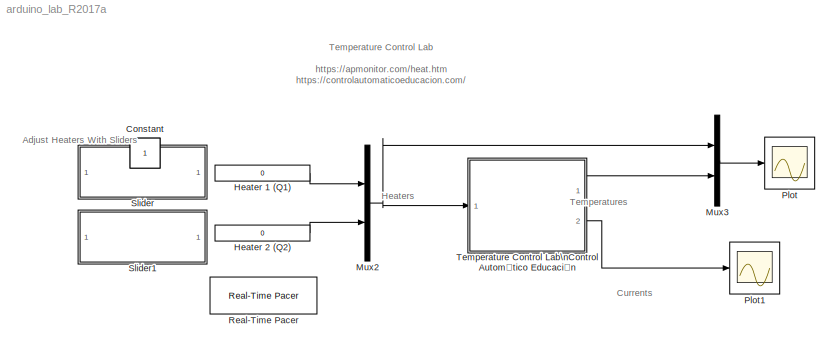
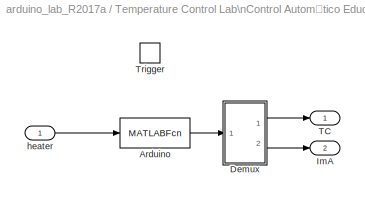
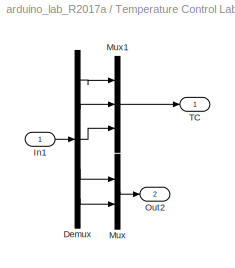
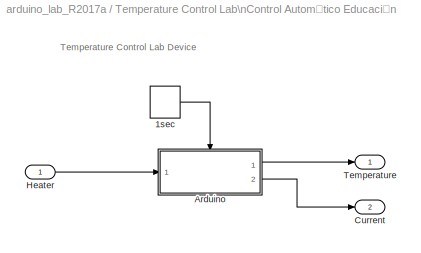
MODEL arduino_lab_R2017a
KIND model
CONFIG StartFcn = clear all
BLOCK [Constant] 1
  IOType = siggen
  SID = 41
BLOCK [Constant] Constant
  IOType = siggen
  SID = 44
BLOCK [Constant] Heater 1 (Q1)
  SID = 67
  Value = 0
BLOCK [Constant] Heater 2 (Q2)
  SID = 68
  Value = 0
BLOCK [Mux] Mux2
  DisplayOption = bar
  Inputs = 2
  Ports = [2, 1]
  SID = 64
BLOCK [Mux] Mux3
  DisplayOption = bar
  Inputs = 2
  Ports = [2, 1]
  SID = 87
BLOCK [Scope] Plot
  Floating = off
  NumInputPorts = 1
  Ports = [1]
  SID = 56
  ScopeSpecificationString = Simulink.scopes.TimeScopeBlockCfg('CurrentConfiguration', extmgr.ConfigurationSet(extmgr.Configuration('Core','General UI',true),extmgr.Configuration('Core','Source UI',true),extmgr.Configuration('Sources','WiredSimulink',true,'DataLoggingLimitDataPoints',true,'DataLoggingSaveFormat','Array','DataLoggingDecimation','1','DataLoggingDecimateData',true),extmgr.Configuration('Visuals','Time Domain',tr...<+1911ch>
BLOCK [Scope] Plot1
  Floating = off
  NumInputPorts = 1
  Ports = [1]
  SID = 101
  ScopeSpecificationString = Simulink.scopes.TimeScopeBlockCfg('CurrentConfiguration', extmgr.ConfigurationSet(extmgr.Configuration('Core','General UI',true),extmgr.Configuration('Core','Source UI',true),extmgr.Configuration('Sources','WiredSimulink',true,'DataLoggingLimitDataPoints',true,'DataLoggingSaveFormat','Array','DataLoggingDecimation','1','DataLoggingDecimateData',true,'DataLoggingVariableName','ScopeData1'),extmgr.C...<+1859ch>
BLOCK [Reference] Real-Time Pacer  REF=realtime_pacer_lib/Real-Time Pacer
  Ports = []
  SID = 23
  SourceBlock = realtime_pacer_lib/Real-Time Pacer
  SourceType = RealTime_Pacer
  simTimePerRealTime = 1
BLOCK [SubSystem] Slider
  DialogController = hmiCreateDDGDialog
  DialogControllerArgs = DataTag0
  IsWebBlock = on
  Ports = []
  RequestExecContextInheritance = off
  SID = 110
BLOCK [SubSystem] Slider1
  DialogController = hmiCreateDDGDialog
  DialogControllerArgs = DataTag1
  IsWebBlock = on
  Ports = []
  RequestExecContextInheritance = off
  SID = 111
BLOCK [SubSystem] Temperature Control Lab\nControl Automático Educación
  Ports = [1, 2]
  RequestExecContextInheritance = off
  SID = 30
BLOCK [DiscretePulseGenerator] Temperature Control Lab\nControl Automático Educación/1sec
  Period = 1
  Ports = [0, 1]
  PulseType = Time based
  PulseWidth = 50
  SID = 32
BLOCK [SubSystem] Temperature Control Lab\nControl Automático Educación/Arduino
  Ports = [1, 2, 0, 1]
  RequestExecContextInheritance = off
  SID = 33
  TreatAsAtomicUnit = on
BLOCK [MATLABFcn] Temperature Control Lab\nControl Automático Educación/Arduino/Arduino
  MATLABFcn = arduino_tclab
  Ports = [1, 1]
  SID = 36
BLOCK [SubSystem] Temperature Control Lab\nControl Automático Educación/Arduino/Demux
  Ports = [1, 2]
  RequestExecContextInheritance = off
  SID = 106
BLOCK [Demux] Temperature Control Lab\nControl Automático Educación/Arduino/Demux/Demux
  Outputs = 5
  Ports = [1, 5]
  SID = 103
BLOCK [Inport] Temperature Control Lab\nControl Automático Educación/Arduino/Demux/In1
  SID = 107
BLOCK [Mux] Temperature Control Lab\nControl Automático Educación/Arduino/Demux/Mux
  DisplayOption = bar
  Inputs = 2
  Ports = [2, 1]
  SID = 104
BLOCK [Mux] Temperature Control Lab\nControl Automático Educación/Arduino/Demux/Mux1
  DisplayOption = bar
  Inputs = 3
  Ports = [3, 1]
  SID = 105
BLOCK [Outport] Temperature Control Lab\nControl Automático Educación/Arduino/Demux/Out2
  Port = 2
  SID = 109
BLOCK [Outport] Temperature Control Lab\nControl Automático Educación/Arduino/Demux/TC
  SID = 108
BLOCK [Outport] Temperature Control Lab\nControl Automático Educación/Arduino/ImA
  InitialOutput = [0 0]
  Port = 2
  SID = 98
BLOCK [Outport] Temperature Control Lab\nControl Automático Educación/Arduino/TC
  InitialOutput = [25 25 25]
  SID = 37
BLOCK [TriggerPort] Temperature Control Lab\nControl Automático Educación/Arduino/Trigger
  Ports = []
  SID = 35
  StatesWhenEnabling = held
  VariantControl = Variant
BLOCK [Inport] Temperature Control Lab\nControl Automático Educación/Arduino/heater
  LatchByDelayingOutsideSignal = on
  SID = 34
BLOCK [Outport] Temperature Control Lab\nControl Automático Educación/Current
  Port = 2
  SID = 99
BLOCK [Inport] Temperature Control Lab\nControl Automático Educación/Heater
  SID = 31
BLOCK [Outport] Temperature Control Lab\nControl Automático Educación/Temperature
  SID = 38
ANNOTATION (root): \n \n Currents
ANNOTATION (root): \n \n Temperature Control Lab \n https://apmonitor.com/heat.htm https://controlautomaticoeducacion.com/
ANNOTATION (root): \n \n Adjust Heaters With Sliders
ANNOTATION (root): \n \n Heaters
ANNOTATION (root): \n \n Temperatures
ANNOTATION Temperature Control Lab\nControl Automático Educación: Temperature Control Lab Device
LINE Heater 1 (Q1):1 -> Mux2:1
LINE Heater 2 (Q2):1 -> Mux2:2
NET Mux2:1 -> Mux3:1, Temperature Control Lab\nControl Automático Educación:1
LINE Mux3:1 -> Plot:1
LINE Temperature Control Lab\nControl Automático Educación/1sec:1 -> Temperature Control Lab\nControl Automático Educación/Arduino:trigger
LINE Temperature Control Lab\nControl Automático Educación/Arduino/Arduino:1 -> Temperature Control Lab\nControl Automático Educación/Arduino/Demux:1
LINE Temperature Control Lab\nControl Automático Educación/Arduino/Demux/Demux:1 -> Temperature Control Lab\nControl Automático Educación/Arduino/Demux/Mux1:1
LINE Temperature Control Lab\nControl Automático Educación/Arduino/Demux/Demux:2 -> Temperature Control Lab\nControl Automático Educación/Arduino/Demux/Mux1:2
LINE Temperature Control Lab\nControl Automático Educación/Arduino/Demux/Demux:3 -> Temperature Control Lab\nControl Automático Educación/Arduino/Demux/Mux1:3
LINE Temperature Control Lab\nControl Automático Educación/Arduino/Demux/Demux:4 -> Temperature Control Lab\nControl Automático Educación/Arduino/Demux/Mux:1
LINE Temperature Control Lab\nControl Automático Educación/Arduino/Demux/Demux:5 -> Temperature Control Lab\nControl Automático Educación/Arduino/Demux/Mux:2
LINE Temperature Control Lab\nControl Automático Educación/Arduino/Demux/In1:1 -> Temperature Control Lab\nControl Automático Educación/Arduino/Demux/Demux:1
LINE Temperature Control Lab\nControl Automático Educación/Arduino/Demux/Mux1:1 -> Temperature Control Lab\nControl Automático Educación/Arduino/Demux/TC:1
LINE Temperature Control Lab\nControl Automático Educación/Arduino/Demux/Mux:1 -> Temperature Control Lab\nControl Automático Educación/Arduino/Demux/Out2:1
LINE Temperature Control Lab\nControl Automático Educación/Arduino/Demux:1 -> Temperature Control Lab\nControl Automático Educación/Arduino/TC:1
LINE Temperature Control Lab\nControl Automático Educación/Arduino/Demux:2 -> Temperature Control Lab\nControl Automático Educación/Arduino/ImA:1
LINE Temperature Control Lab\nControl Automático Educación/Arduino/heater:1 -> Temperature Control Lab\nControl Automático Educación/Arduino/Arduino:1
LINE Temperature Control Lab\nControl Automático Educación/Arduino:1 -> Temperature Control Lab\nControl Automático Educación/Temperature:1
LINE Temperature Control Lab\nControl Automático Educación/Arduino:2 -> Temperature Control Lab\nControl Automático Educación/Current:1
LINE Temperature Control Lab\nControl Automático Educación/Heater:1 -> Temperature Control Lab\nControl Automático Educación/Arduino:1
LINE Temperature Control Lab\nControl Automático Educación:1 -> Mux3:2
LINE Temperature Control Lab\nControl Automático Educación:2 -> Plot1:1
note: NET lines group one-source signal fan-out (src -> all destinations, sorted); 1:1 wires keep LINE
